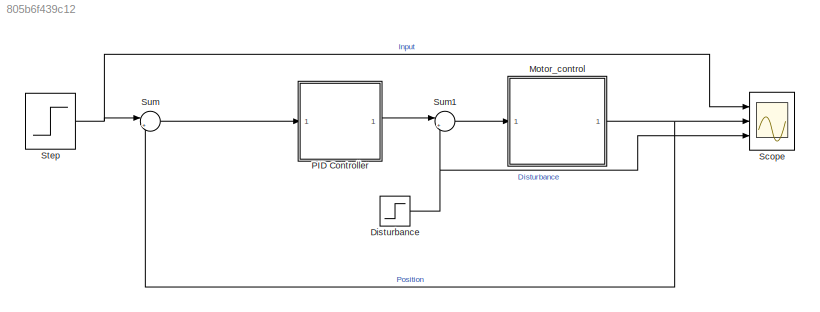
MODEL slx_805b6f439c12
KIND model
CONFIG AbsTol = auto
CONFIG EnableMultiTasking = off
CONFIG FixedStep = auto
CONFIG MaxStep = auto
CONFIG MinStep = auto
CONFIG RelTol = 1e-3
CONFIG SampleTimeConstraint = Unconstrained
CONFIG SolverName = VariableStepAuto
CONFIG StartTime = 0.0
CONFIG StopTime = 10.0
WORKSPACE source: mxarray member
WORKSPACE J: Simulink.Parameter (value not decoded)
WORKSPACE K: Simulink.Parameter (value not decoded)
WORKSPACE L: Simulink.Parameter (value not decoded)
WORKSPACE R: Simulink.Parameter (value not decoded)
WORKSPACE b: Simulink.Parameter (value not decoded)
WORKSPACE kd: Simulink.Parameter (value not decoded)
WORKSPACE ki: Simulink.Parameter (value not decoded)
WORKSPACE kp: Simulink.Parameter (value not decoded)
WORKSPACE n: Simulink.Parameter (value not decoded)
BLOCK [Step] Disturbance
  SampleTime = 0
  Time = 0.06
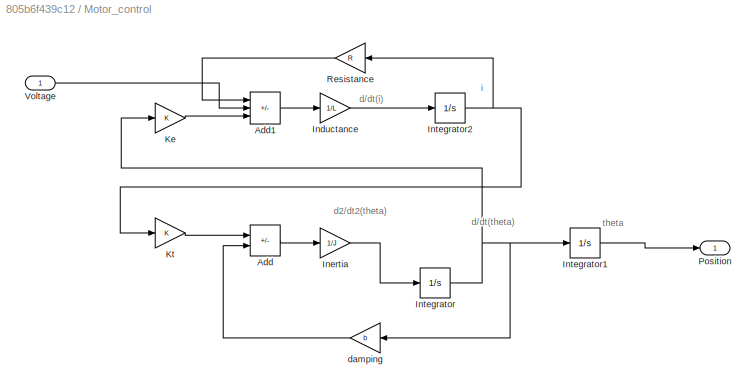
BLOCK [SubSystem] Motor_control
  Ports = [1, 1]
  RequestExecContextInheritance = off
BLOCK [Sum] Motor_control/Add
  IconShape = rectangular
  Inputs = +-
  Ports = [2, 1]
BLOCK [Sum] Motor_control/Add1
  IconShape = rectangular
  Inputs = -+-
  Ports = [3, 1]
BLOCK [Gain] Motor_control/Inductance
  Gain = 1/L
BLOCK [Gain] Motor_control/Inertia
  Gain = 1/J
BLOCK [Integrator] Motor_control/Integrator
  Ports = [1, 1]
BLOCK [Integrator] Motor_control/Integrator1
  Ports = [1, 1]
BLOCK [Integrator] Motor_control/Integrator2
  Ports = [1, 1]
BLOCK [Gain] Motor_control/Ke
  Gain = K
BLOCK [Gain] Motor_control/Kt
  Gain = K
BLOCK [Outport] Motor_control/Position
BLOCK [Gain] Motor_control/Resistance
  Gain = R
BLOCK [Inport] Motor_control/Voltage
BLOCK [Gain] Motor_control/damping
  Gain = b
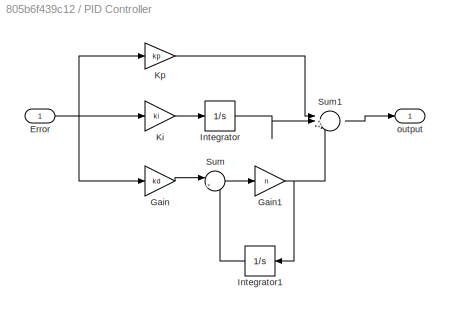
BLOCK [SubSystem] PID Controller
  Ports = [1, 1]
  RequestExecContextInheritance = off
  TreatAsAtomicUnit = on
BLOCK [Inport] PID Controller/Error
BLOCK [Gain] PID Controller/Gain
  Gain = kd
BLOCK [Gain] PID Controller/Gain1
  Gain = n
BLOCK [Integrator] PID Controller/Integrator
  Ports = [1, 1]
BLOCK [Integrator] PID Controller/Integrator1
  NameLocation = top
  Ports = [1, 1]
BLOCK [Gain] PID Controller/Ki
  Gain = ki
BLOCK [Gain] PID Controller/Kp
  Gain = kp
BLOCK [Sum] PID Controller/Sum
  Inputs = |+-
  Ports = [2, 1]
BLOCK [Sum] PID Controller/Sum1
  Inputs = |+++
  NameLocation = top
  Ports = [3, 1]
BLOCK [Outport] PID Controller/output
BLOCK [Scope] Scope
  Floating = off
  NumInputPorts = 3
  Ports = [3]
  ScopeSpecificationString = Simulink.scopes.TimeScopeBlockCfg('CurrentConfiguration', extmgr.ConfigurationSet(extmgr.Configuration('Core','General UI',true),extmgr.Configuration('Core','Source UI',true),extmgr.Configuration('Sources','WiredSimulink',true),extmgr.Configuration('Visuals','Time Domain',true,'SerializedDisplays',{struct('MinYLimReal','0.9','MaxYLimReal','1.1','YLabelReal','','MinYLimMag','0.9','MaxYLimMag','1.1'...<+2752ch>
BLOCK [Step] Step
  SampleTime = 0
  Time = 0
BLOCK [Sum] Sum
  Inputs = |+-
  Ports = [2, 1]
BLOCK [Sum] Sum1
  Inputs = |++
  Ports = [2, 1]
ANNOTATION Motor_control: d/dt(i)
ANNOTATION Motor_control: d/dt(theta)
ANNOTATION Motor_control: d2/dt2(theta)
ANNOTATION Motor_control: i
ANNOTATION Motor_control: theta
NET Disturbance:1 -> Scope:3, Sum1:2
LINE Motor_control/Add1:1 -> Motor_control/Inductance:1
LINE Motor_control/Add:1 -> Motor_control/Inertia:1
LINE Motor_control/Inductance:1 -> Motor_control/Integrator2:1
LINE Motor_control/Inertia:1 -> Motor_control/Integrator:1
LINE Motor_control/Integrator1:1 -> Motor_control/Position:1
NET Motor_control/Integrator2:1 -> Motor_control/Kt:1, Motor_control/Resistance:1
NET Motor_control/Integrator:1 -> Motor_control/Integrator1:1, Motor_control/Ke:1, Motor_control/damping:1
LINE Motor_control/Ke:1 -> Motor_control/Add1:3
LINE Motor_control/Kt:1 -> Motor_control/Add:1
LINE Motor_control/Resistance:1 -> Motor_control/Add1:1
LINE Motor_control/Voltage:1 -> Motor_control/Add1:2
LINE Motor_control/damping:1 -> Motor_control/Add:2
NET Motor_control:1 -> Scope:2, Sum:2
NET PID Controller/Error:1 -> PID Controller/Gain:1, PID Controller/Ki:1, PID Controller/Kp:1
NET PID Controller/Gain1:1 -> PID Controller/Integrator1:1, PID Controller/Sum1:3
LINE PID Controller/Gain:1 -> PID Controller/Sum:1
LINE PID Controller/Integrator1:1 -> PID Controller/Sum:2
LINE PID Controller/Integrator:1 -> PID Controller/Sum1:2
LINE PID Controller/Ki:1 -> PID Controller/Integrator:1
LINE PID Controller/Kp:1 -> PID Controller/Sum1:1
LINE PID Controller/Sum1:1 -> PID Controller/output:1
LINE PID Controller/Sum:1 -> PID Controller/Gain1:1
LINE PID Controller:1 -> Sum1:1
NET Step:1 -> Scope:1, Sum:1
LINE Sum1:1 -> Motor_control:1
LINE Sum:1 -> PID Controller:1
note: NET lines group one-source signal fan-out (src -> all destinations, sorted); 1:1 wires keep LINE
